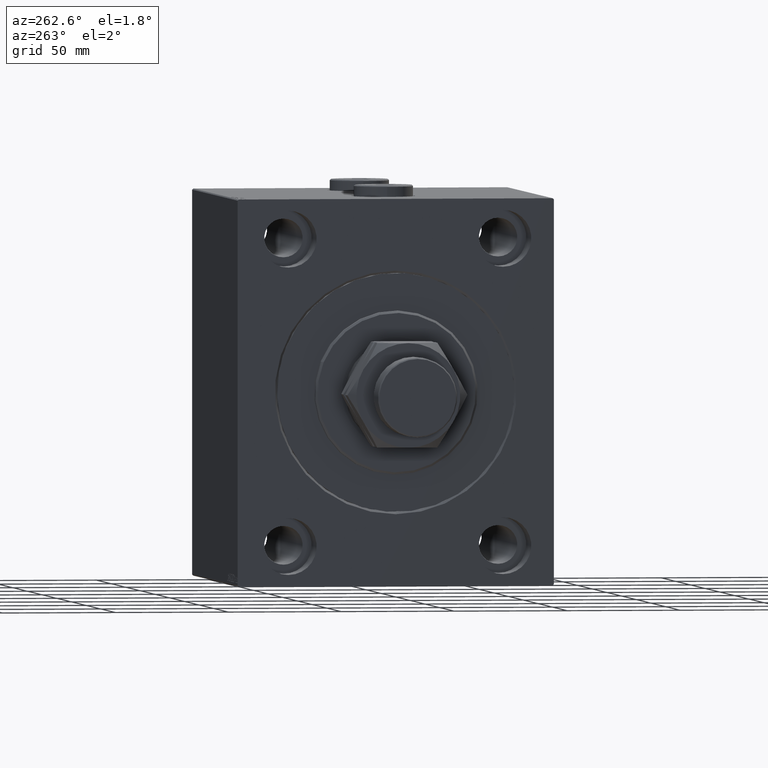
[diagram: clean part render]
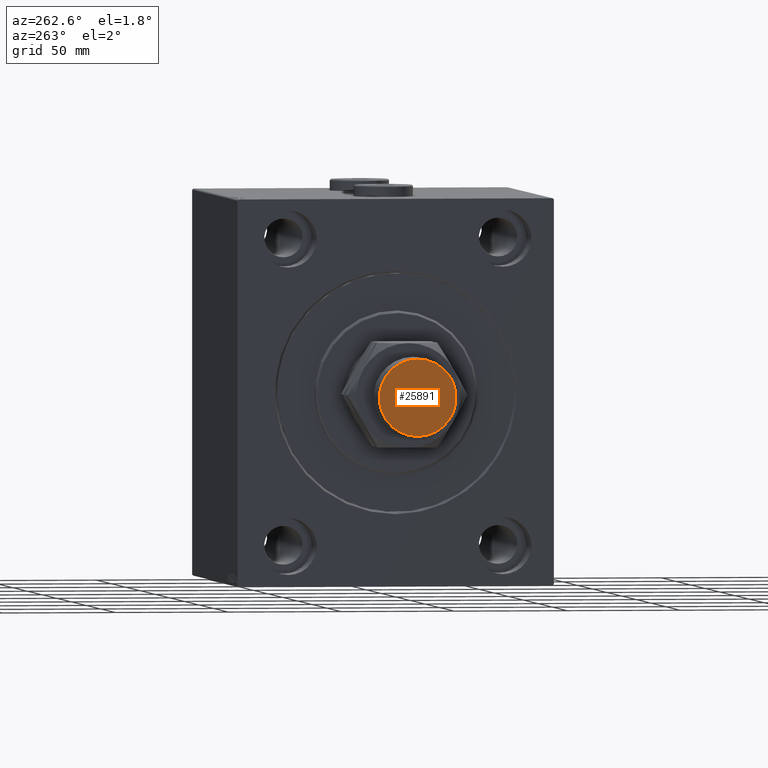
[diagram: same view with one face highlighted and labeled with its STEP entity id]
A machine part, auxiliary view. The second image highlights one B-rep face of the part: STEP entity #25891.
In plain terms, the highlighted planar face has unit normal (-1, 0, 0).
Its self-contained STEP definition (entity closure, byte-faithful):
#495 = AXIS2_PLACEMENT_3D ( 'NONE', #16458, #20035, #30980 ) ;
#3616 = PLANE ( 'NONE',  #31616 ) ;
#4819 = EDGE_CURVE ( 'NONE', #14348, #17577, #38518, .T. ) ;
#7660 = DIRECTION ( 'NONE',  ( 1.000000000000000000, 0.000000000000000000, -0.000000000000000000 ) ) ;
#10006 = AXIS2_PLACEMENT_3D ( 'NONE', #41495, #11987, #27214 ) ;
#11987 = DIRECTION ( 'NONE',  ( 0.000000000000000000, 0.000000000000000000, 1.000000000000000000 ) ) ;
#14348 = VERTEX_POINT ( 'NONE', #18249 ) ;
#15348 = CIRCLE ( 'NONE', #10006, 16.99999999999998579 ) ;
#15686 = EDGE_CURVE ( 'NONE', #17577, #14348, #15348, .T. ) ;
#16458 = CARTESIAN_POINT ( 'NONE',  ( 0.000000000000000000, 0.000000000000000000, 60.00000000000000000 ) ) ;
#17577 = VERTEX_POINT ( 'NONE', #46697 ) ;
#18249 = CARTESIAN_POINT ( 'NONE',  ( -16.99999999999998579, 0.000000000000000000, 60.00000000000000000 ) ) ;
#20035 = DIRECTION ( 'NONE',  ( 0.000000000000000000, 0.000000000000000000, 1.000000000000000000 ) ) ;
#22188 = DIRECTION ( 'NONE',  ( 0.000000000000000000, 0.000000000000000000, 1.000000000000000000 ) ) ;
#24366 = ORIENTED_EDGE ( 'NONE', *, *, #15686, .T. ) ;
#25279 = FACE_OUTER_BOUND ( 'NONE', #28343, .T. ) ;
#25891 = ADVANCED_FACE ( 'NONE', ( #25279 ), #3616, .T. ) ;
#27214 = DIRECTION ( 'NONE',  ( 1.000000000000000000, 0.000000000000000000, 0.000000000000000000 ) ) ;
#28109 = ORIENTED_EDGE ( 'NONE', *, *, #4819, .T. ) ;
#28343 = EDGE_LOOP ( 'NONE', ( #28109, #24366 ) ) ;
#30980 = DIRECTION ( 'NONE',  ( 1.000000000000000000, 0.000000000000000000, 0.000000000000000000 ) ) ;
#31616 = AXIS2_PLACEMENT_3D ( 'NONE', #39798, #22188, #7660 ) ;
#38518 = CIRCLE ( 'NONE', #495, 16.99999999999998579 ) ;
#39798 = CARTESIAN_POINT ( 'NONE',  ( 0.000000000000000000, 0.000000000000000000, 60.00000000000000000 ) ) ;
#41495 = CARTESIAN_POINT ( 'NONE',  ( 0.000000000000000000, 0.000000000000000000, 60.00000000000000000 ) ) ;
#46697 = CARTESIAN_POINT ( 'NONE',  ( 16.99999999999998579, 2.112515728529183672E-15, 60.00000000000000000 ) ) ;